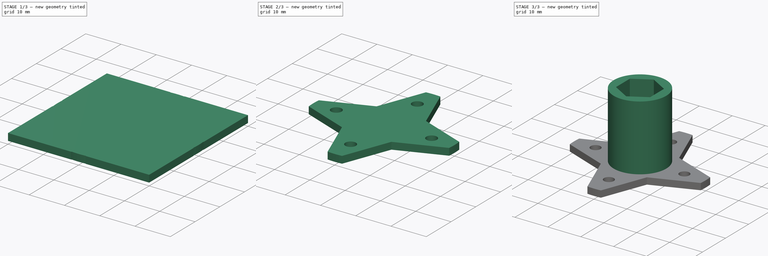
[diagram: build sequence overview — one tinted view per stage of 3, left to right]
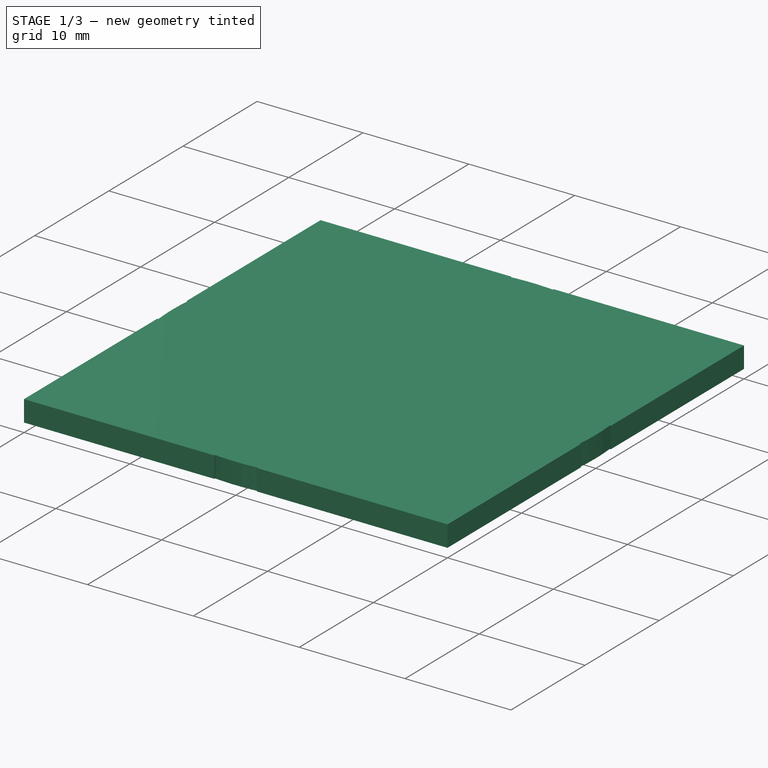
[diagram: stage 1 of 3 — iso view after this stage's code; geometry added in this stage tinted green]
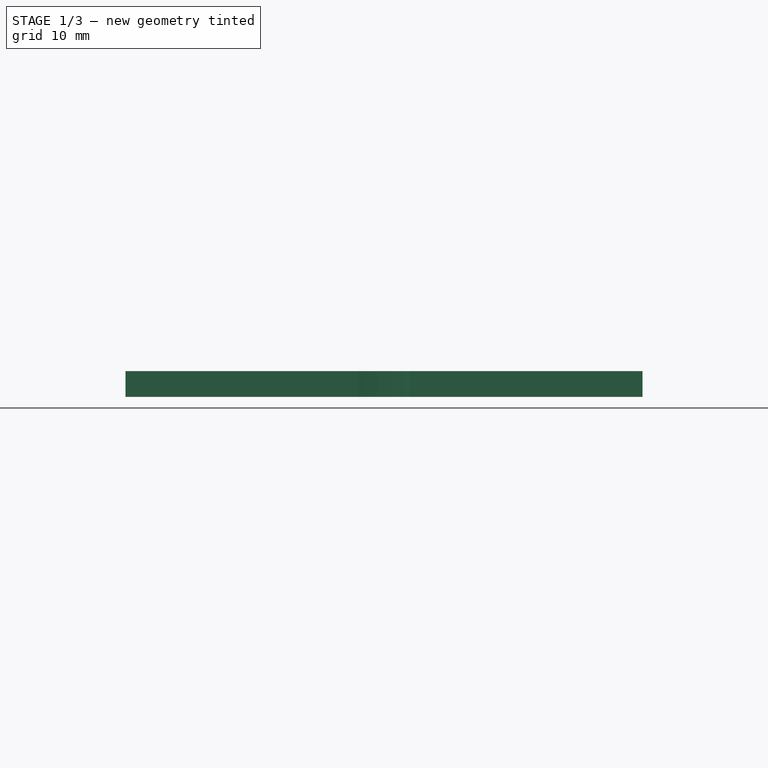
[diagram: stage 1 of 3 — front view after this stage's code; geometry added in this stage tinted green]
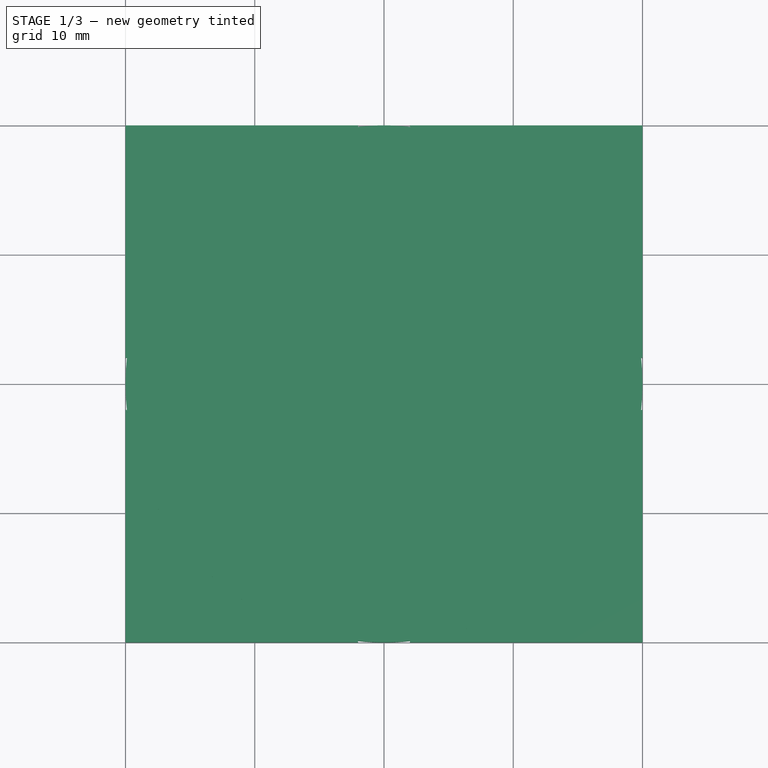
[diagram: stage 1 of 3 — top view after this stage's code; geometry added in this stage tinted green]
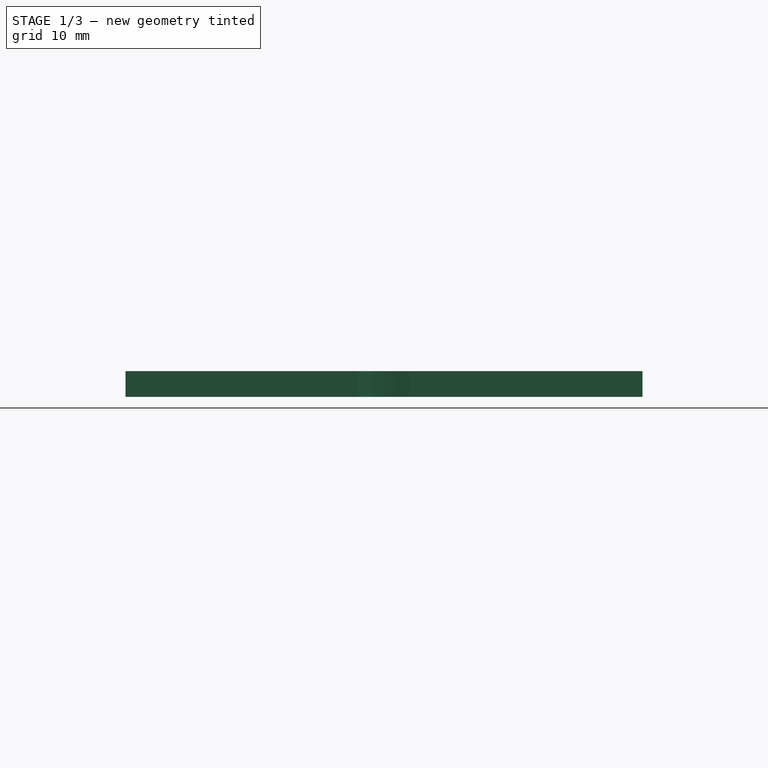
[diagram: stage 1 of 3 — right view after this stage's code; geometry added in this stage tinted green]
FCSTD DOCUMENT  (FreeCAD 0.16R6712 (Git))
Label: blind
License: All rights reserved
LicenseURL: http://en.wikipedia.org/wiki/All_rights_reserved
objects: Sketcher::SketchObject×3, Part::Extrusion×3, Part::Cut×3, Part::Cylinder×2
note: 11 computed .brp shape members not serialized (recipe doc carries the construction recipe); baked Part::Feature solids carry a one-line shape summary decoded from their .brp

FEATURE [Part::Cylinder] Cylinder001
  Angle = 360
  Height = 2
  Placement = pos=(0,0,-2) rot=(0,0,1;0rad)
  Radius = 20
FEATURE [Sketcher::SketchObject] Sketch001
  Placement = pos=(0,0,-2) rot=(1,0,0;3.14159rad)
  sketch-geometry (5):
    g0: Circle [constr] CenterX=0 CenterY=0 CenterZ=0 NormalX=0 NormalY=0 NormalZ=1 Radius=13.5
    g1: Circle CenterX=0 CenterY=13.5 CenterZ=0 NormalX=0 NormalY=0 NormalZ=1 Radius=1.5
    g2: Circle CenterX=13.5 CenterY=0 CenterZ=0 NormalX=0 NormalY=0 NormalZ=1 Radius=1.5
    g3: Circle CenterX=0 CenterY=-13.5 CenterZ=0 NormalX=0 NormalY=0 NormalZ=1 Radius=1.5
    g4: Circle CenterX=-13.5 CenterY=0 CenterZ=0 NormalX=0 NormalY=0 NormalZ=1 Radius=1.5
  constraints (8):
    c: Coincident(g0,g-1)
    c: PointOnObject(g1,g0)
    c: PointOnObject(g2,g0)
    c: PointOnObject(g3,g0)
    c: PointOnObject(g4,g0)
    c: Equal(g1,g2)
    c: Equal(g2,g3)
    c: Equal(g3,g4)
FEATURE [Part::Extrusion] Extrude001
  Base = -> Sketch001
  Dir = (0,0,2)
  Solid = true
FEATURE [Sketcher::SketchObject] Sketch003
  sketch-geometry (16):
    g0: LineSegment StartX=-7 StartY=7 StartZ=0 EndX=-2 EndY=20 EndZ=0
    g1: LineSegment StartX=-2 StartY=20 StartZ=0 EndX=-20 EndY=20 EndZ=0
    g2: LineSegment StartX=-20 StartY=20 StartZ=0 EndX=-20 EndY=2 EndZ=0
    g3: LineSegment StartX=-20 StartY=2 StartZ=0 EndX=-7 EndY=7 EndZ=0
    g4: LineSegment StartX=-7 StartY=-7 StartZ=0 EndX=-2 EndY=-20 EndZ=0
    g5: LineSegment StartX=-2 StartY=-20 StartZ=0 EndX=-20 EndY=-20 EndZ=0
    g6: LineSegment StartX=-20 StartY=-20 StartZ=0 EndX=-20 EndY=-2 EndZ=0
    g7: LineSegment StartX=-20 StartY=-2 StartZ=0 EndX=-7 EndY=-7 EndZ=0
    g8: LineSegment StartX=7 StartY=-7 StartZ=0 EndX=2 EndY=-20 EndZ=0
    g9: LineSegment StartX=2 StartY=-20 StartZ=0 EndX=20 EndY=-20 EndZ=0
    g10: LineSegment StartX=20 StartY=-20 StartZ=0 EndX=20 EndY=-2 EndZ=0
    g11: LineSegment StartX=20 StartY=-2 StartZ=0 EndX=7 EndY=-7 EndZ=0
    g12: LineSegment StartX=7 StartY=7 StartZ=0 EndX=2 EndY=20 EndZ=0
    g13: LineSegment StartX=2 StartY=20 StartZ=0 EndX=20 EndY=20 EndZ=0
    g14: LineSegment StartX=20 StartY=20 StartZ=0 EndX=20 EndY=2 EndZ=0
    g15: LineSegment StartX=20 StartY=2 StartZ=0 EndX=7 EndY=7 EndZ=0
  constraints (24):
    c: Coincident(g0,g1)
    c: Horizontal(g1)
    c: Coincident(g1,g2)
    c: Vertical(g2)
    c: Coincident(g2,g3)
    c: Coincident(g3,g0)
    c: Coincident(g4,g5)
    c: Horizontal(g5)
    c: Coincident(g5,g6)
    c: Vertical(g6)
    c: Coincident(g6,g7)
    c: Coincident(g7,g4)
    c: Coincident(g8,g9)
    c: Horizontal(g9)
    c: Coincident(g9,g10)
    c: Vertical(g10)
    c: Coincident(g10,g11)
    c: Coincident(g11,g8)
    c: Coincident(g12,g13)
    c: Horizontal(g13)
    c: Coincident(g13,g14)
    c: Vertical(g14)
    c: Coincident(g14,g15)
    c: Coincident(g15,g12)
FEATURE [Part::Extrusion] Extrude002
  Base = -> Sketch003
  Dir = (0,0,-2)
  Solid = true
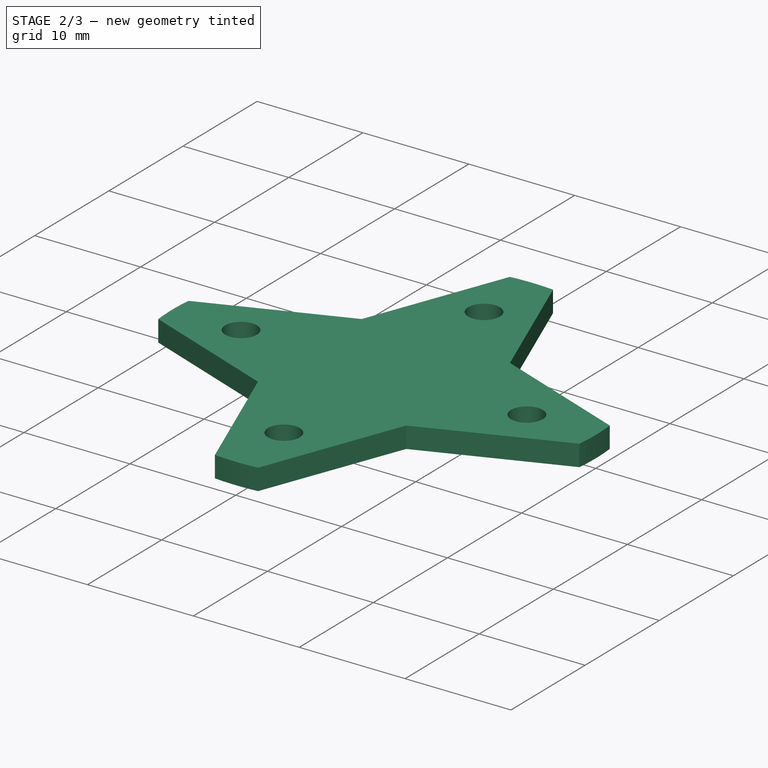
[diagram: stage 2 of 3 — iso view after this stage's code; geometry added in this stage tinted green]
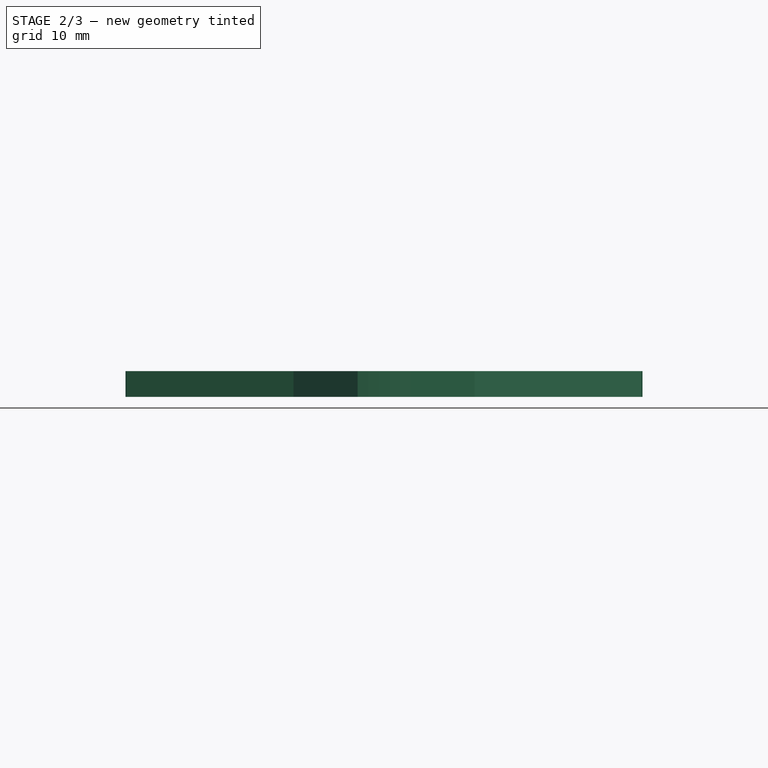
[diagram: stage 2 of 3 — front view after this stage's code; geometry added in this stage tinted green]
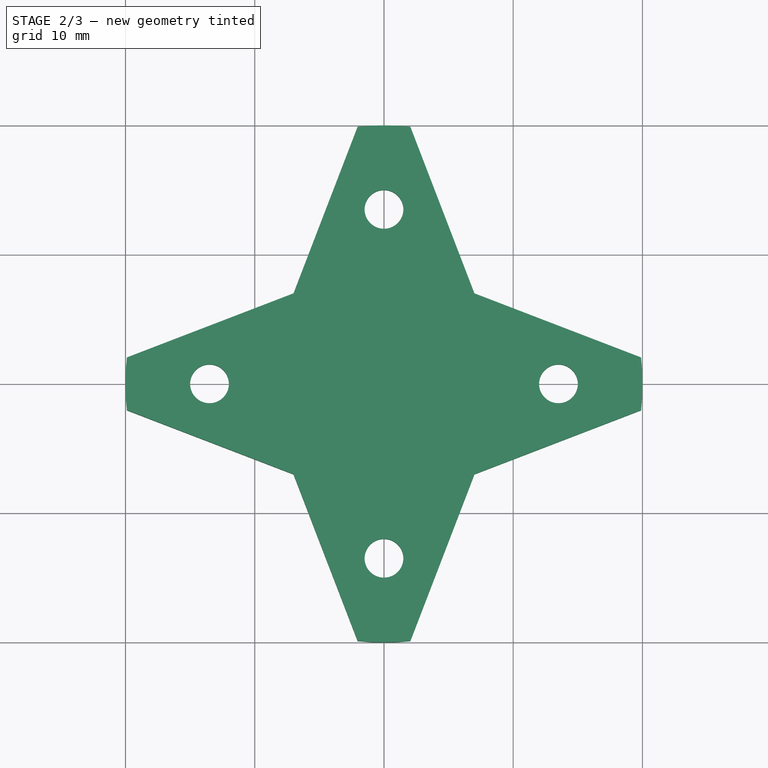
[diagram: stage 2 of 3 — top view after this stage's code; geometry added in this stage tinted green]
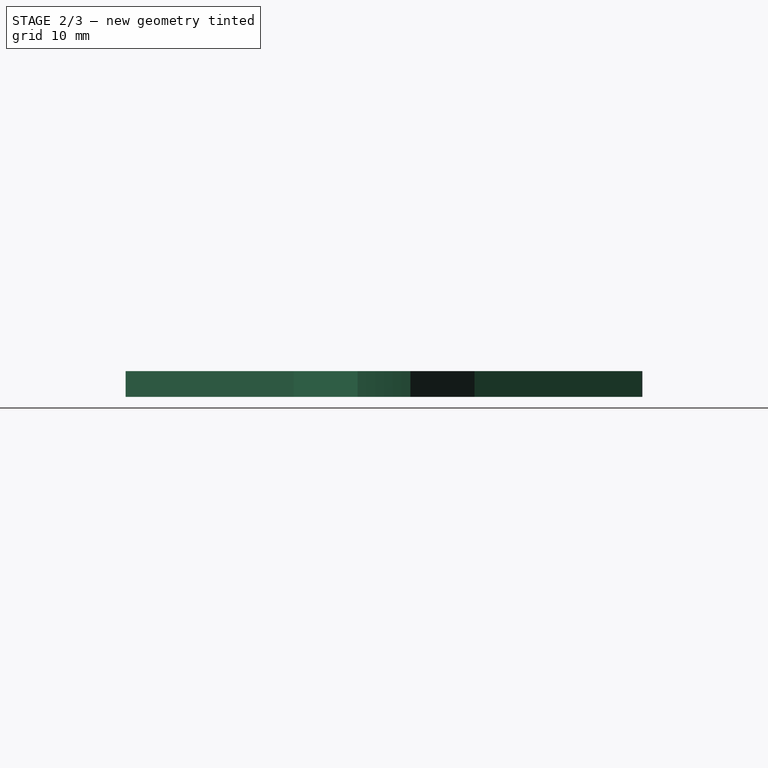
[diagram: stage 2 of 3 — right view after this stage's code; geometry added in this stage tinted green]
FEATURE [Part::Cut] Cut001
  Base = -> Cylinder001
  Tool = -> Extrude001
FEATURE [Part::Cut] Cut002
  Base = -> Cut001
  Tool = -> Extrude002
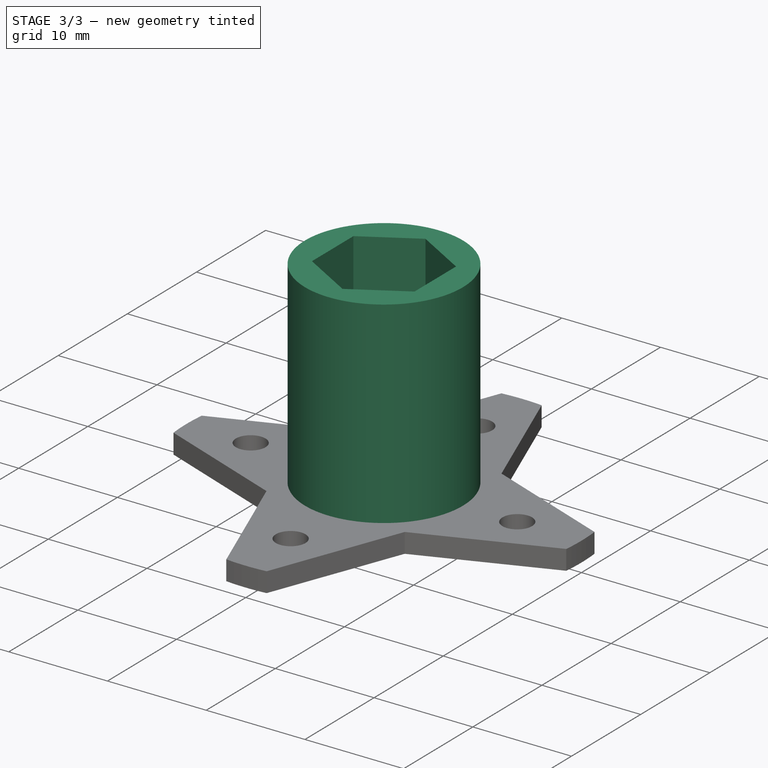
[diagram: stage 3 of 3 — iso view after this stage's code; geometry added in this stage tinted green]
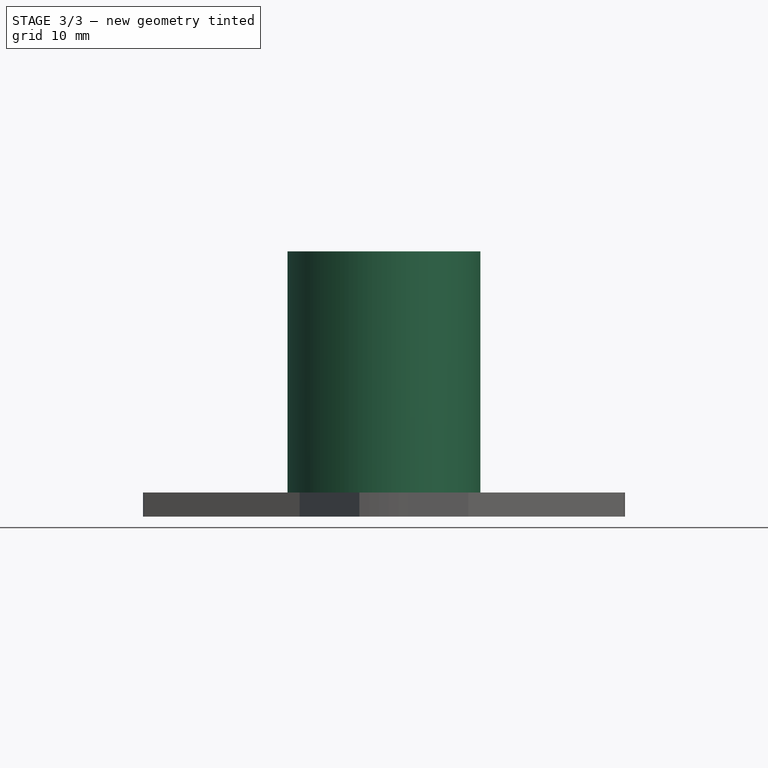
[diagram: stage 3 of 3 — front view after this stage's code; geometry added in this stage tinted green]
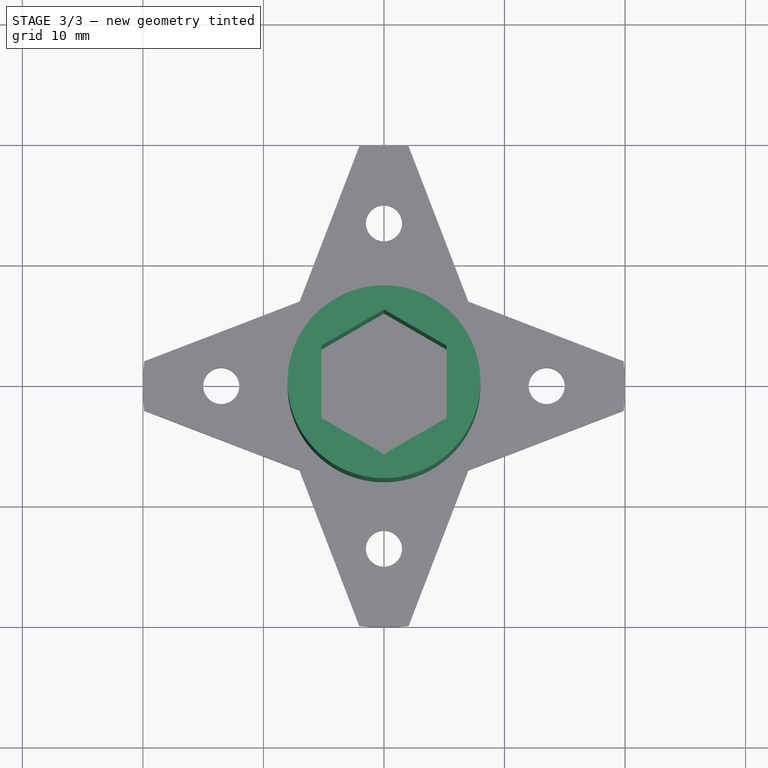
[diagram: stage 3 of 3 — top view after this stage's code; geometry added in this stage tinted green]
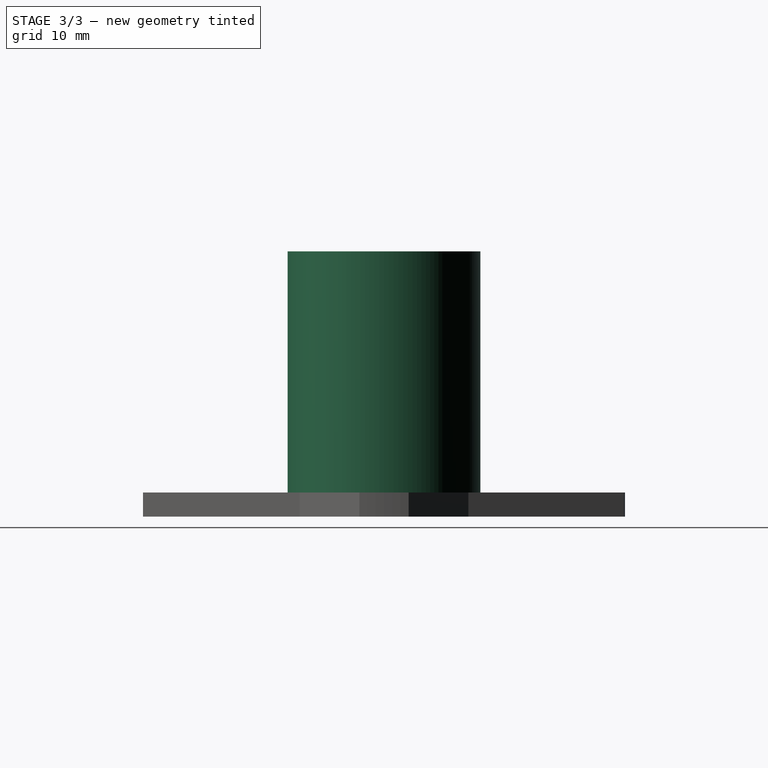
[diagram: stage 3 of 3 — right view after this stage's code; geometry added in this stage tinted green]
FEATURE [Part::Cylinder] Cylinder
  Angle = 360
  Height = 20
  Radius = 8
FEATURE [Sketcher::SketchObject] Sketch
  Placement = pos=(0,0,20) rot=(0,0,1;0rad)
  Support = -> Cylinder [Face2]
  sketch-geometry (7):
    g0: LineSegment StartX=0 StartY=6 StartZ=0 EndX=-5.19615 EndY=3 EndZ=0
    g1: LineSegment StartX=-5.19615 StartY=3 StartZ=0 EndX=-5.19615 EndY=-3 EndZ=0
    g2: LineSegment StartX=-5.19615 StartY=-3 StartZ=0 EndX=0 EndY=-6 EndZ=0
    g3: LineSegment StartX=0 StartY=-6 StartZ=0 EndX=5.19615 EndY=-3 EndZ=0
    g4: LineSegment StartX=5.19615 StartY=-3 StartZ=0 EndX=5.19615 EndY=3 EndZ=0
    g5: LineSegment StartX=5.19615 StartY=3 StartZ=0 EndX=0 EndY=6 EndZ=0
    g6: Circle [constr] CenterX=0 CenterY=0 CenterZ=0 NormalX=0 NormalY=0 NormalZ=1 Radius=6
  constraints (14):
    c: Coincident(g0,g1)
    c: Coincident(g1,g2)
    c: Coincident(g2,g3)
    c: Coincident(g3,g4)
    c: Coincident(g4,g5)
    c: Coincident(g5,g0)
    c: Equal(g0, g1-g5) x5
    c: PointOnObject(g0,g6)
    c: PointOnObject(g1,g6)
    c: PointOnObject(g2,g6)
    c: PointOnObject(g3,g6)
    c: PointOnObject(g4,g6)
    c: PointOnObject(g5,g6)
    c: Coincident(g6,g-1)
FEATURE [Part::Extrusion] Extrude
  Base = -> Sketch
  Dir = (0,0,-30)
  Solid = true
FEATURE [Part::Cut] Cut
  Base = -> Cylinder
  Tool = -> Extrude
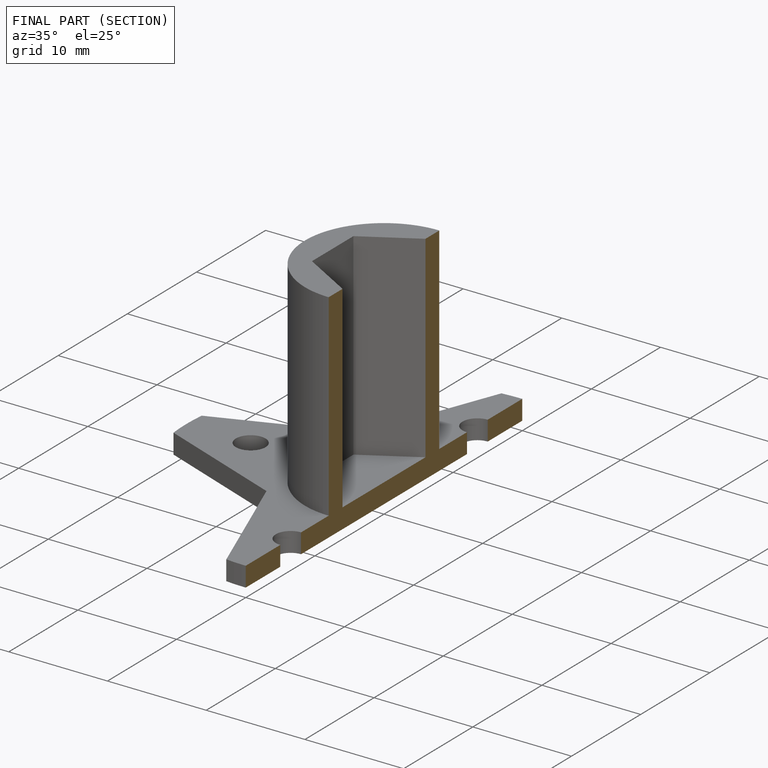
[diagram: finished part — half-section view (interior)]
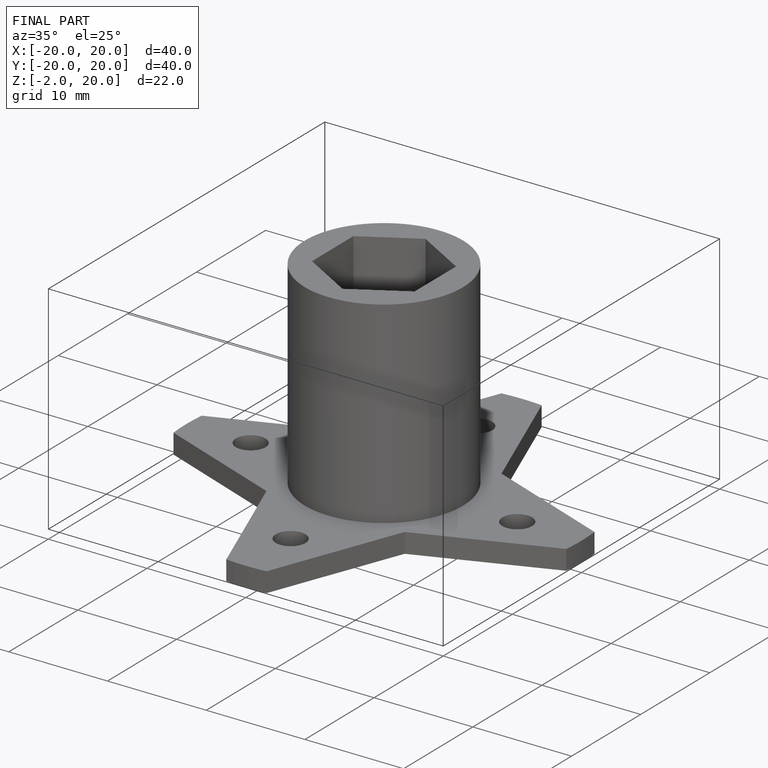
[diagram: finished part — iso view with bounding-box wireframe]
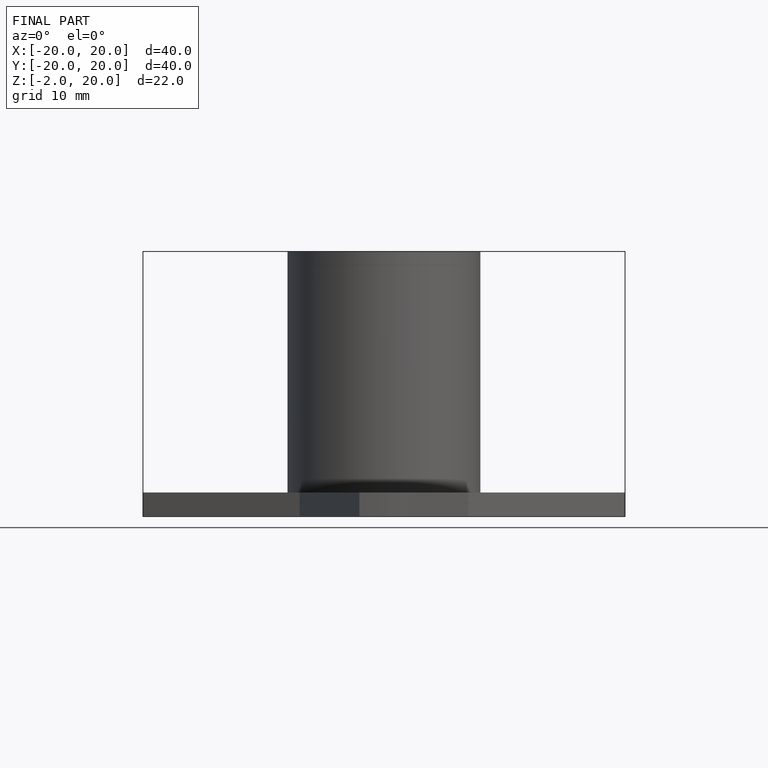
[diagram: finished part — front view with bounding-box wireframe]
